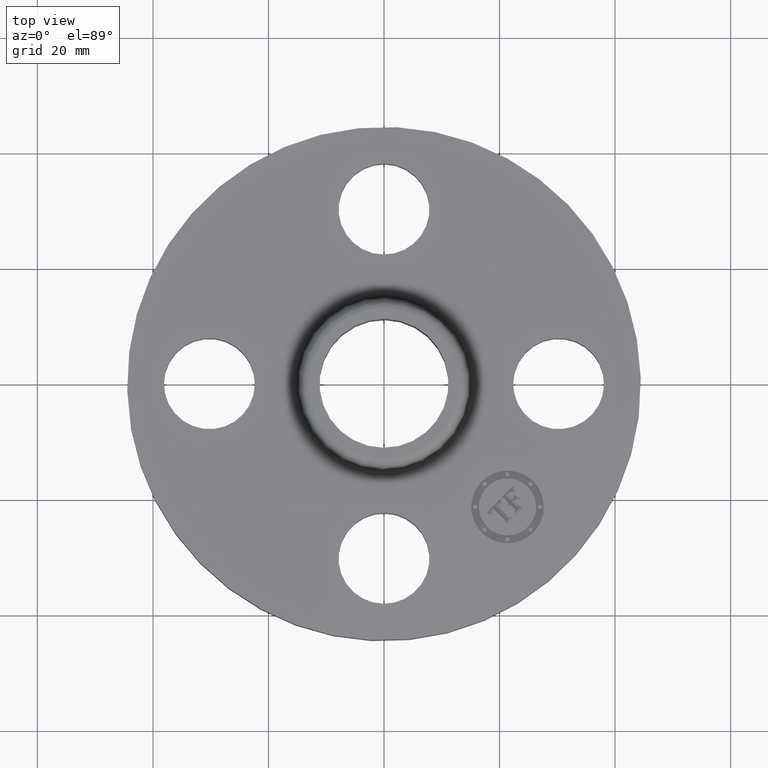
[diagram: clean part render]
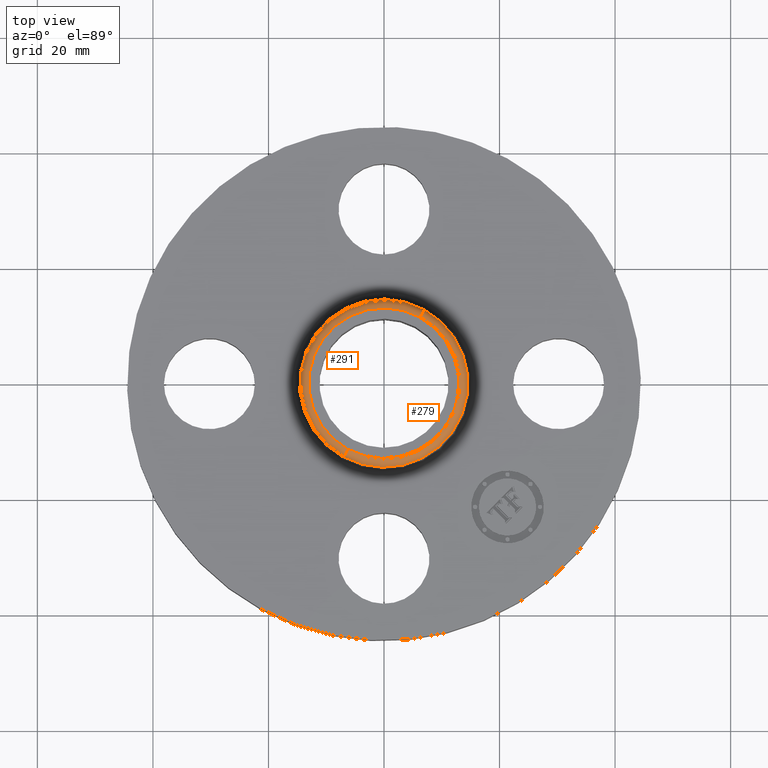
[diagram: same view with one multi-face feature highlighted, each face labeled with its STEP entity id]
A machine part, top view. The highlighted faces form ONE feature: a constant-radius fillet chain: 2 tangent blend faces with common blend radius 1.524 mm. The faces share edges in the B-rep.
Their STEP definitions:
[1] entity #279 (Torus):
#220=AXIS2_PLACEMENT_3D('Circle Axis2P3D',#218,#219,$) ;
#252=AXIS2_PLACEMENT_3D('Torus Axis2P3D',#249,#250,#251) ;
#256=AXIS2_PLACEMENT_3D('Circle Axis2P3D',#254,#255,$) ;
#263=AXIS2_PLACEMENT_3D('Circle Axis2P3D',#261,#262,$) ;
#270=AXIS2_PLACEMENT_3D('Circle Axis2P3D',#268,#269,$) ;
#215=CARTESIAN_POINT('Vertex',(0.274233148773,0.501980411715,0.510418890662)) ;
#218=CARTESIAN_POINT('Axis2P3D Location',(0.,0.,0.510418890662)) ;
#222=CARTESIAN_POINT('Vertex',(-0.274233148773,-0.501980411715,0.510418890662)) ;
#249=CARTESIAN_POINT('Axis2P3D Location',(0.,0.,0.500000000002)) ;
#254=CARTESIAN_POINT('Axis2P3D Location',(0.245904629528,0.450125405063,0.500000000002)) ;
#258=CARTESIAN_POINT('Vertex',(0.245904629528,0.450125405063,0.560000000002)) ;
#261=CARTESIAN_POINT('Axis2P3D Location',(0.,0.,0.560000000002)) ;
#265=CARTESIAN_POINT('Vertex',(-0.245904629528,-0.450125405063,0.560000000002)) ;
#268=CARTESIAN_POINT('Axis2P3D Location',(-0.245904629528,-0.450125405063,0.500000000002)) ;
#219=DIRECTION('Axis2P3D Direction',(0.,0.,-0.0393700787402)) ;
#250=DIRECTION('Axis2P3D Direction',(0.,0.,-0.0393700787402)) ;
#251=DIRECTION('Axis2P3D XDirection',(-0.0188750212049,-0.0345504945626,0.)) ;
#255=DIRECTION('Axis2P3D Direction',(-0.0345504945626,0.0188750212049,0.)) ;
#262=DIRECTION('Axis2P3D Direction',(0.,0.,-0.0393700787402)) ;
#269=DIRECTION('Axis2P3D Direction',(0.0345504945626,-0.0188750212049,0.)) ;
#274=ORIENTED_EDGE('',*,*,#224,.F.) ;
#275=ORIENTED_EDGE('',*,*,#260,.T.) ;
#276=ORIENTED_EDGE('',*,*,#267,.T.) ;
#277=ORIENTED_EDGE('',*,*,#272,.F.) ;
#279=ADVANCED_FACE('PartBody',(#278),#253,.T.) ;
#221=CIRCLE('generated circle',#220,0.572003630785) ;
#257=CIRCLE('generated circle',#256,0.0600000000002) ;
#264=CIRCLE('generated circle',#263,0.512915165604) ;
#271=CIRCLE('generated circle',#270,0.0600000000002) ;
#253=TOROIDAL_SURFACE('homeo Torus',#252,0.512915165604,0.0600000000002) ;
#224=EDGE_CURVE('',#216,#223,#221,.T.) ;
#260=EDGE_CURVE('',#216,#259,#257,.F.) ;
#267=EDGE_CURVE('',#259,#266,#264,.T.) ;
#272=EDGE_CURVE('',#223,#266,#271,.F.) ;
#273=EDGE_LOOP('',(#274,#275,#276,#277)) ;
#278=FACE_OUTER_BOUND('',#273,.T.) ;
#216=VERTEX_POINT('',#215) ;
#223=VERTEX_POINT('',#222) ;
#259=VERTEX_POINT('',#258) ;
#266=VERTEX_POINT('',#265) ;
[2] entity #291 (Torus):
#239=AXIS2_PLACEMENT_3D('Circle Axis2P3D',#237,#238,$) ;
#252=AXIS2_PLACEMENT_3D('Torus Axis2P3D',#249,#250,#251) ;
#256=AXIS2_PLACEMENT_3D('Circle Axis2P3D',#254,#255,$) ;
#270=AXIS2_PLACEMENT_3D('Circle Axis2P3D',#268,#269,$) ;
#282=AXIS2_PLACEMENT_3D('Circle Axis2P3D',#280,#281,$) ;
#215=CARTESIAN_POINT('Vertex',(0.274233148773,0.501980411715,0.510418890662)) ;
#222=CARTESIAN_POINT('Vertex',(-0.274233148773,-0.501980411715,0.510418890662)) ;
#237=CARTESIAN_POINT('Axis2P3D Location',(0.,0.,0.510418890662)) ;
#249=CARTESIAN_POINT('Axis2P3D Location',(0.,0.,0.500000000002)) ;
#254=CARTESIAN_POINT('Axis2P3D Location',(0.245904629528,0.450125405063,0.500000000002)) ;
#258=CARTESIAN_POINT('Vertex',(0.245904629528,0.450125405063,0.560000000002)) ;
#265=CARTESIAN_POINT('Vertex',(-0.245904629528,-0.450125405063,0.560000000002)) ;
#268=CARTESIAN_POINT('Axis2P3D Location',(-0.245904629528,-0.450125405063,0.500000000002)) ;
#280=CARTESIAN_POINT('Axis2P3D Location',(0.,0.,0.560000000002)) ;
#238=DIRECTION('Axis2P3D Direction',(0.,0.,-0.0393700787402)) ;
#250=DIRECTION('Axis2P3D Direction',(0.,0.,-0.0393700787402)) ;
#251=DIRECTION('Axis2P3D XDirection',(-0.0188750212049,-0.0345504945626,0.)) ;
#255=DIRECTION('Axis2P3D Direction',(-0.0345504945626,0.0188750212049,0.)) ;
#269=DIRECTION('Axis2P3D Direction',(0.0345504945626,-0.0188750212049,0.)) ;
#281=DIRECTION('Axis2P3D Direction',(0.,0.,-0.0393700787402)) ;
#286=ORIENTED_EDGE('',*,*,#241,.F.) ;
#287=ORIENTED_EDGE('',*,*,#272,.T.) ;
#288=ORIENTED_EDGE('',*,*,#284,.T.) ;
#289=ORIENTED_EDGE('',*,*,#260,.F.) ;
#291=ADVANCED_FACE('PartBody',(#290),#253,.T.) ;
#240=CIRCLE('generated circle',#239,0.572003630785) ;
#257=CIRCLE('generated circle',#256,0.0600000000002) ;
#271=CIRCLE('generated circle',#270,0.0600000000002) ;
#283=CIRCLE('generated circle',#282,0.512915165604) ;
#253=TOROIDAL_SURFACE('homeo Torus',#252,0.512915165604,0.0600000000002) ;
#241=EDGE_CURVE('',#223,#216,#240,.T.) ;
#260=EDGE_CURVE('',#216,#259,#257,.F.) ;
#272=EDGE_CURVE('',#223,#266,#271,.F.) ;
#284=EDGE_CURVE('',#266,#259,#283,.T.) ;
#285=EDGE_LOOP('',(#286,#287,#288,#289)) ;
#290=FACE_OUTER_BOUND('',#285,.T.) ;
#216=VERTEX_POINT('',#215) ;
#223=VERTEX_POINT('',#222) ;
#259=VERTEX_POINT('',#258) ;
#266=VERTEX_POINT('',#265) ;